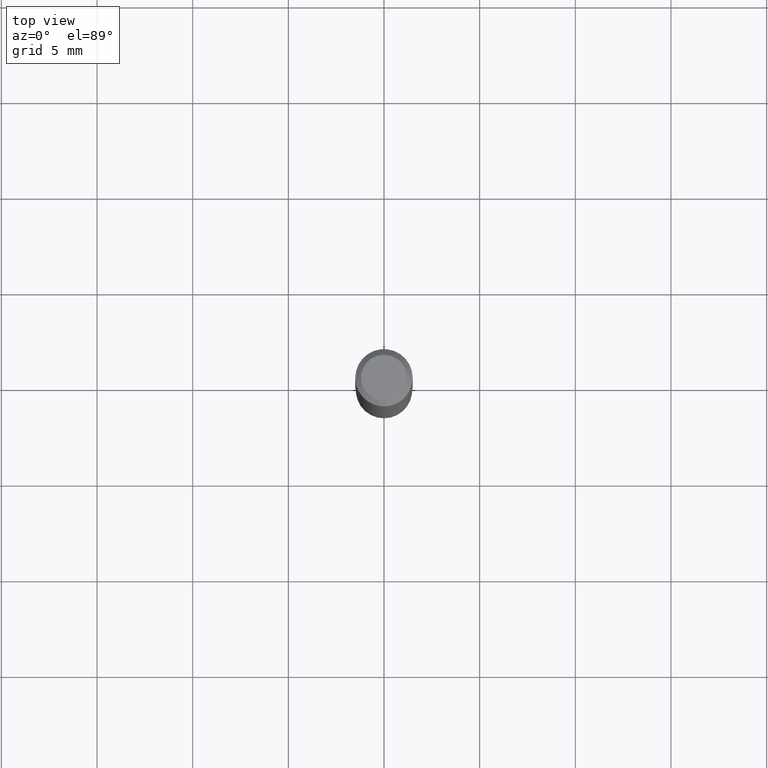
[diagram: clean part render]
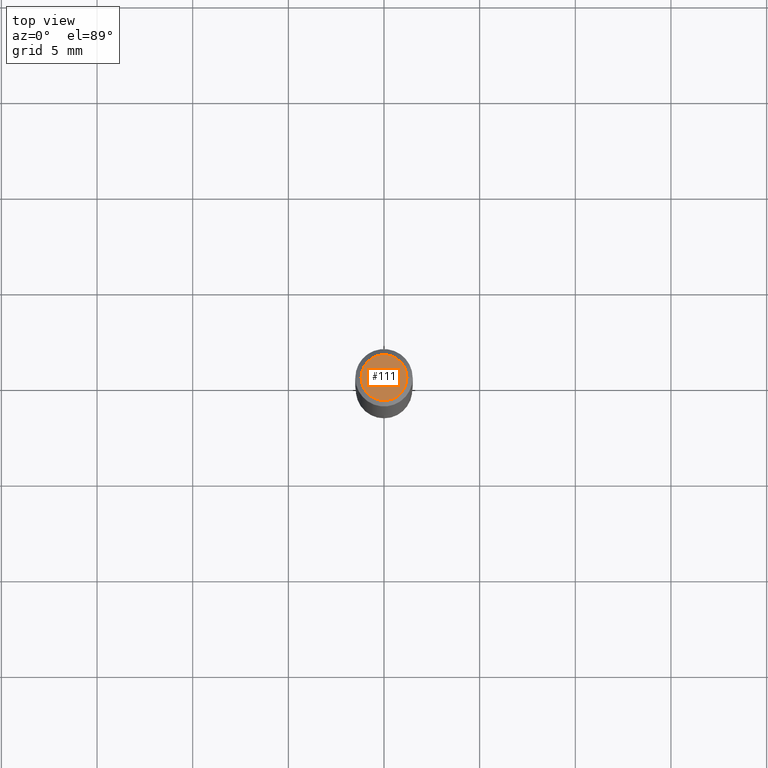
[diagram: same view with one face highlighted and labeled with its STEP entity id]
A machine part, top view. The second image highlights one B-rep face of the part: STEP entity #111.
In plain terms, the highlighted planar face has unit normal (0, -0, -1).
Its self-contained STEP definition (entity closure, byte-faithful):
#4 = FACE_OUTER_BOUND ( 'NONE', #295, .T. ) ;
#21 = AXIS2_PLACEMENT_3D ( 'NONE', #48, #382, #393 ) ;
#22 = CIRCLE ( 'NONE', #358, 0.04724000000000000421 ) ;
#29 = CARTESIAN_POINT ( 'NONE',  ( 8.265746106709734507E-48, -1.180129479067563789E-33, -3.380025165646692144E-19 ) ) ;
#48 = CARTESIAN_POINT ( 'NONE',  ( 4.132873053354867254E-48, -5.900647395337818946E-34, -1.690012582823346072E-19 ) ) ;
#96 = CARTESIAN_POINT ( 'NONE',  ( 0.04724000000000000421, -3.852183633974369345E-16, -3.380025165621689721E-19 ) ) ;
#108 = ORIENTED_EDGE ( 'NONE', *, *, #324, .T. ) ;
#111 = ADVANCED_FACE ( 'NONE', ( #4 ), #228, .F. ) ;
#112 = ORIENTED_EDGE ( 'NONE', *, *, #420, .T. ) ;
#138 = DIRECTION ( 'NONE',  ( -2.445468806185136597E-29, 3.491481338843145583E-15, 1.000000000000000000 ) ) ;
#147 = CARTESIAN_POINT ( 'NONE',  ( -0.04724000000000000421, 3.504923541997677355E-16, -3.380025165670481712E-19 ) ) ;
#164 = DIRECTION ( 'NONE',  ( 1.000000000000000000, -6.982962677686266711E-15, 4.876185090822587894E-29 ) ) ;
#181 = DIRECTION ( 'NONE',  ( 1.000000000000000000, -6.982962677686266711E-15, 4.876185090822587894E-29 ) ) ;
#207 = VERTEX_POINT ( 'NONE', #96 ) ;
#228 = PLANE ( 'NONE',  #21 ) ;
#289 = AXIS2_PLACEMENT_3D ( 'NONE', #330, #138, #164 ) ;
#295 = EDGE_LOOP ( 'NONE', ( #108, #112 ) ) ;
#301 = DIRECTION ( 'NONE',  ( -2.445468806185136597E-29, 3.491481338843145583E-15, 1.000000000000000000 ) ) ;
#324 = EDGE_CURVE ( 'NONE', #375, #207, #461, .T. ) ;
#330 = CARTESIAN_POINT ( 'NONE',  ( 8.265746106709734507E-48, -1.180129479067563789E-33, -3.380025165646692144E-19 ) ) ;
#358 = AXIS2_PLACEMENT_3D ( 'NONE', #29, #301, #181 ) ;
#375 = VERTEX_POINT ( 'NONE', #147 ) ;
#382 = DIRECTION ( 'NONE',  ( 2.438088387897960049E-29, -3.491481338843145188E-15, -1.000000000000000000 ) ) ;
#393 = DIRECTION ( 'NONE',  ( -1.000000000000000000, 6.982962677686265922E-15, -4.876176775795935793E-29 ) ) ;
#420 = EDGE_CURVE ( 'NONE', #207, #375, #22, .T. ) ;
#461 = CIRCLE ( 'NONE', #289, 0.04724000000000000421 ) ;